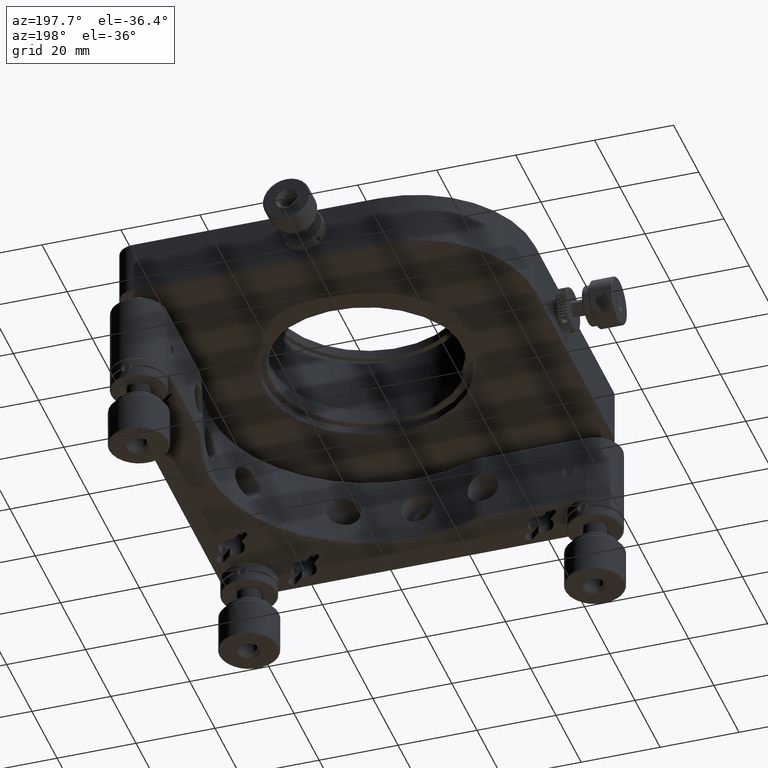
[diagram: clean part render]
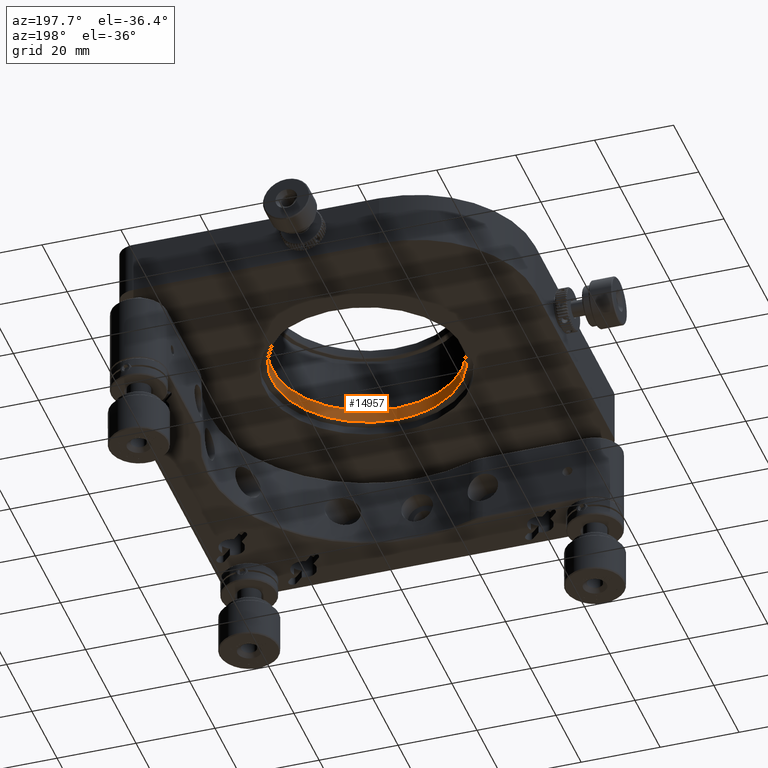
[diagram: same view with one face highlighted and labeled with its STEP entity id]
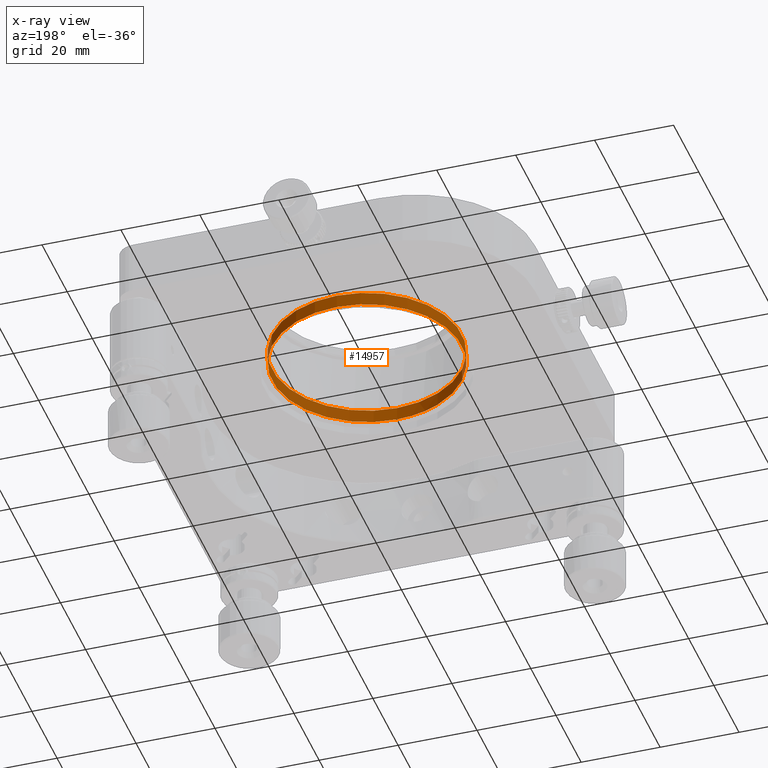
[diagram: x-ray of the same camera — body ghosted, the highlighted face saturated]
A machine part, auxiliary view. The second image highlights one B-rep face of the part: STEP entity #14957.
The next image is the same camera in x-ray: the body ghosted, the highlighted face saturated — about 0% of this face is hidden behind the body in this view.
In plain terms, the highlighted cylindrical surface (bore or boss wall) has radius 24 mm, axis along (-0, 0, 1).
Its self-contained STEP definition (entity closure, byte-faithful):
#367 = DIRECTION ( 'NONE',  ( 6.328258872331030098E-17, -6.328367751825053698E-17, -1.000000000000000000 ) ) ;
#2467 = DIRECTION ( 'NONE',  ( 6.328258872331030098E-17, -6.328367751825053698E-17, -1.000000000000000000 ) ) ;
#3528 = DIRECTION ( 'NONE',  ( -6.328258872331030098E-17, 6.328367751825053698E-17, 1.000000000000000000 ) ) ;
#5373 = VERTEX_POINT ( 'NONE', #43314 ) ;
#7474 = VERTEX_POINT ( 'NONE', #32855 ) ;
#8841 = ORIENTED_EDGE ( 'NONE', *, *, #24595, .T. ) ;
#10033 = FACE_OUTER_BOUND ( 'NONE', #45992, .T. ) ;
#14957 = ADVANCED_FACE ( 'NONE', ( #10033, #33061 ), #50101, .F. ) ;
#15263 = CARTESIAN_POINT ( 'NONE',  ( -100.0500000000000398, -12.45000000000004370, 28.83842537941657724 ) ) ;
#19461 = DIRECTION ( 'NONE',  ( -0.4611714871751609879, -0.8873110274400123343, 0.000000000000000000 ) ) ;
#20701 = EDGE_LOOP ( 'NONE', ( #8841 ) ) ;
#21092 = CIRCLE ( 'NONE', #24611, 24.00000000000000711 ) ;
#24416 = DIRECTION ( 'NONE',  ( 0.000000000000000000, -1.000000000000000000, 0.000000000000000000 ) ) ;
#24595 = EDGE_CURVE ( 'NONE', #5373, #5373, #34357, .T. ) ;
#24611 = AXIS2_PLACEMENT_3D ( 'NONE', #37739, #367, #51125 ) ;
#27035 = CARTESIAN_POINT ( 'NONE',  ( -100.0500000000000398, -12.45000000000004370, 28.53842537941655877 ) ) ;
#32855 = CARTESIAN_POINT ( 'NONE',  ( -100.0500000000000398, -36.45000000000005258, 32.23842537941656161 ) ) ;
#33061 = FACE_OUTER_BOUND ( 'NONE', #20701, .T. ) ;
#34357 = CIRCLE ( 'NONE', #51295, 24.00000000000000711 ) ;
#37533 = ORIENTED_EDGE ( 'NONE', *, *, #48369, .F. ) ;
#37739 = CARTESIAN_POINT ( 'NONE',  ( -100.0500000000000398, -12.45000000000004370, 32.23842537941656161 ) ) ;
#43314 = CARTESIAN_POINT ( 'NONE',  ( -111.1181156922039150, -33.74546465856035127, 28.83842537941657724 ) ) ;
#45992 = EDGE_LOOP ( 'NONE', ( #37533 ) ) ;
#47333 = AXIS2_PLACEMENT_3D ( 'NONE', #27035, #3528, #24416 ) ;
#48369 = EDGE_CURVE ( 'NONE', #7474, #7474, #21092, .T. ) ;
#50101 = CYLINDRICAL_SURFACE ( 'NONE', #47333, 24.00000000000000711 ) ;
#51125 = DIRECTION ( 'NONE',  ( 0.000000000000000000, -1.000000000000000000, 0.000000000000000000 ) ) ;
#51295 = AXIS2_PLACEMENT_3D ( 'NONE', #15263, #2467, #19461 ) ;